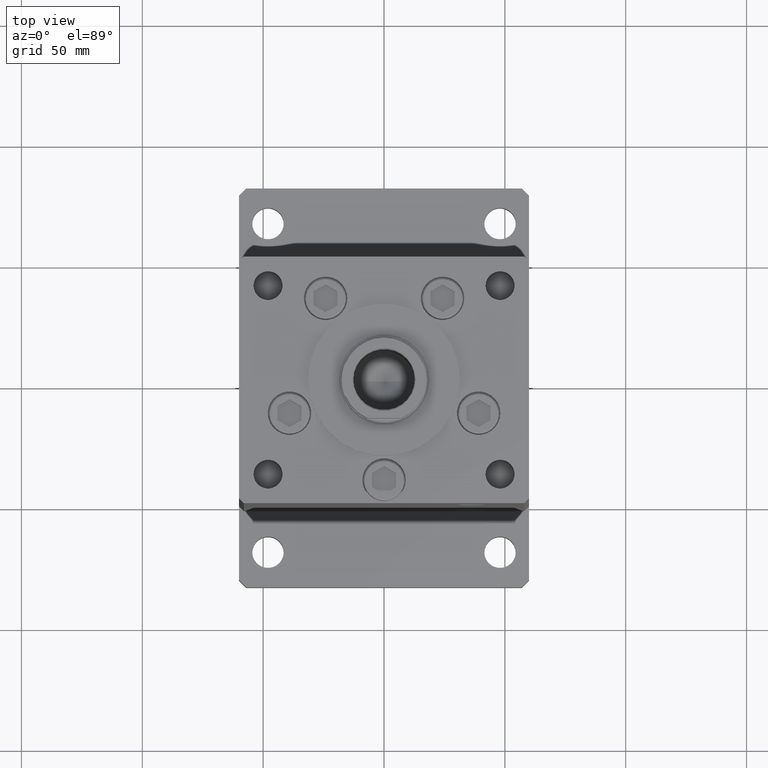
[diagram: clean part render]
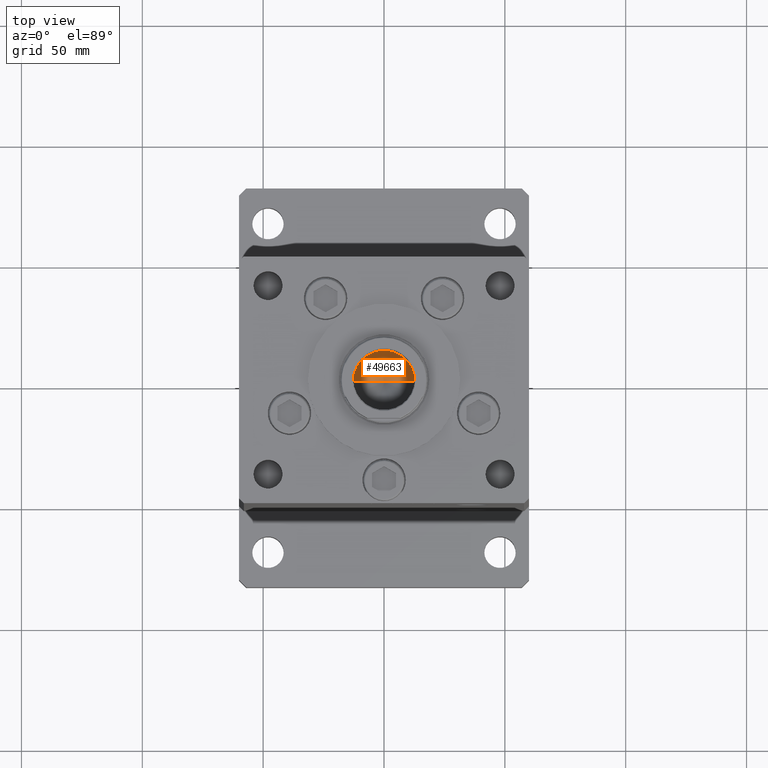
[diagram: same view with one face highlighted and labeled with its STEP entity id]
A machine part, top view. The second image highlights one B-rep face of the part: STEP entity #49663.
In plain terms, the highlighted conical surface has half-angle 59 deg.
Its self-contained STEP definition (entity closure, byte-faithful):
#2839 = FACE_OUTER_BOUND ( 'NONE', #49524, .T. ) ;
#3700 = CARTESIAN_POINT ( 'NONE',  ( -12.74999999999999112, 1.561424668912874125E-15, 124.2500000000000142 ) ) ;
#3969 = LINE ( 'NONE', #3700, #14531 ) ;
#6314 = VERTEX_POINT ( 'NONE', #24645 ) ;
#6654 = DIRECTION ( 'NONE',  ( 1.000000000000000000, 0.000000000000000000, 0.000000000000000000 ) ) ;
#8260 = AXIS2_PLACEMENT_3D ( 'NONE', #34310, #14238, #13713 ) ;
#8285 = CARTESIAN_POINT ( 'NONE',  ( -1.307202896762960287E-14, 0.000000000000000000, 116.5890271073986213 ) ) ;
#10583 = ORIENTED_EDGE ( 'NONE', *, *, #26431, .F. ) ;
#10975 = CARTESIAN_POINT ( 'NONE',  ( 12.74999999999999112, 0.000000000000000000, 124.2500000000000142 ) ) ;
#11244 = DIRECTION ( 'NONE',  ( 0.8571673007021117785, 0.000000000000000000, 0.5150380749100550437 ) ) ;
#13713 = DIRECTION ( 'NONE',  ( 1.000000000000000000, 0.000000000000000000, 0.000000000000000000 ) ) ;
#14238 = DIRECTION ( 'NONE',  ( -0.000000000000000000, -0.000000000000000000, 1.000000000000000000 ) ) ;
#14531 = VECTOR ( 'NONE', #20217, 1000.000000000000000 ) ;
#16028 = CONICAL_SURFACE ( 'NONE', #45490, 12.74999999999999112, 1.029744258676653423 ) ;
#17582 = ORIENTED_EDGE ( 'NONE', *, *, #19665, .T. ) ;
#19665 = EDGE_CURVE ( 'NONE', #43642, #47107, #48393, .T. ) ;
#20217 = DIRECTION ( 'NONE',  ( -0.8571673007021117785, 1.049727191138617956E-16, 0.5150380749100550437 ) ) ;
#24645 = CARTESIAN_POINT ( 'NONE',  ( -12.74999999999999112, 1.561424668912874125E-15, 124.2500000000000142 ) ) ;
#25666 = VECTOR ( 'NONE', #11244, 1000.000000000000000 ) ;
#26431 = EDGE_CURVE ( 'NONE', #43642, #6314, #3969, .T. ) ;
#32258 = CARTESIAN_POINT ( 'NONE',  ( 12.74999999999999112, 0.000000000000000000, 124.2500000000000142 ) ) ;
#34310 = CARTESIAN_POINT ( 'NONE',  ( 0.000000000000000000, 0.000000000000000000, 124.2500000000000142 ) ) ;
#40232 = CARTESIAN_POINT ( 'NONE',  ( 0.000000000000000000, 0.000000000000000000, 124.2500000000000142 ) ) ;
#42884 = CIRCLE ( 'NONE', #8260, 12.74999999999999112 ) ;
#43642 = VERTEX_POINT ( 'NONE', #8285 ) ;
#45490 = AXIS2_PLACEMENT_3D ( 'NONE', #40232, #48656, #6654 ) ;
#47107 = VERTEX_POINT ( 'NONE', #32258 ) ;
#48393 = LINE ( 'NONE', #10975, #25666 ) ;
#48656 = DIRECTION ( 'NONE',  ( -0.000000000000000000, -0.000000000000000000, 1.000000000000000000 ) ) ;
#49524 = EDGE_LOOP ( 'NONE', ( #10583, #17582, #51734 ) ) ;
#49620 = EDGE_CURVE ( 'NONE', #47107, #6314, #42884, .T. ) ;
#49663 = ADVANCED_FACE ( 'NONE', ( #2839 ), #16028, .F. ) ;
#51734 = ORIENTED_EDGE ( 'NONE', *, *, #49620, .T. ) ;